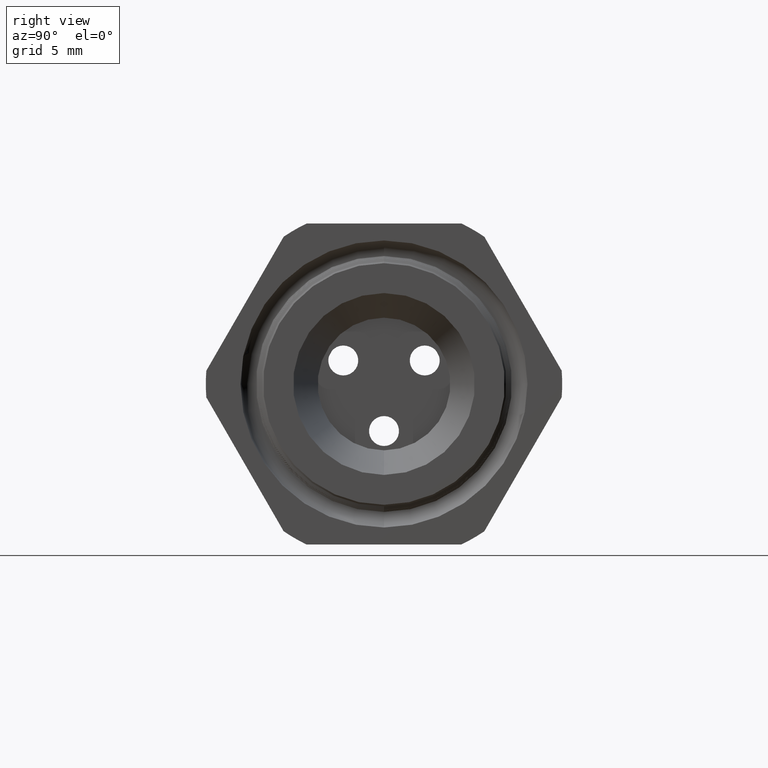
[diagram: clean part render]
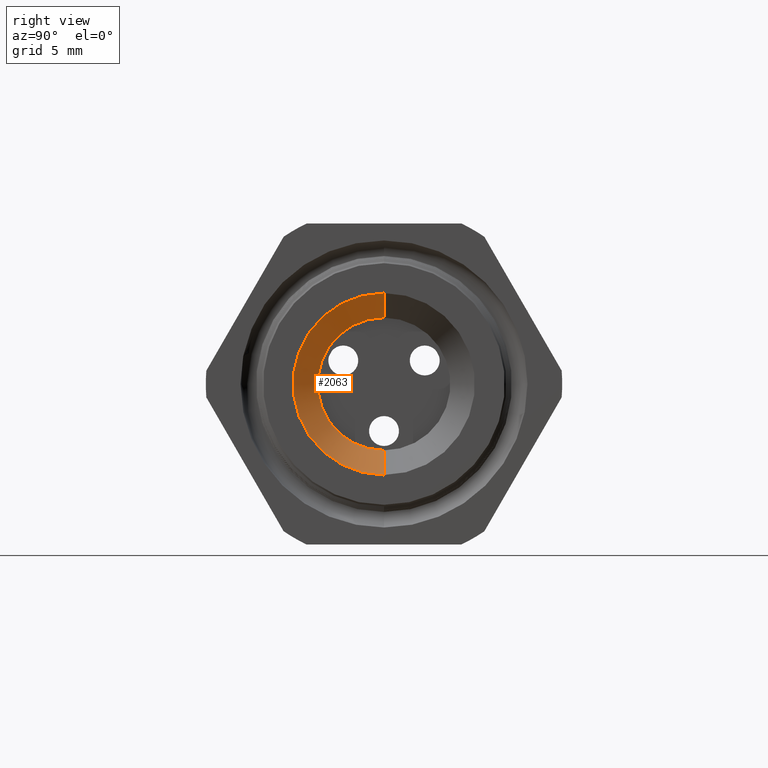
[diagram: same view with one face highlighted and labeled with its STEP entity id]
A machine part, right view. The second image highlights one B-rep face of the part: STEP entity #2063.
In plain terms, the highlighted conical surface has half-angle 3.818 deg.
Its self-contained STEP definition (entity closure, byte-faithful):
#2014 = EDGE_CURVE ( 'NONE', #2057, #2047, #4648, .T. ) ;
#2015 = ORIENTED_EDGE ( 'NONE', *, *, #2014, .F. ) ;
#2019 = ORIENTED_EDGE ( 'NONE', *, *, #2031, .T. ) ;
#2023 = EDGE_CURVE ( 'NONE', #2059, #2041, #4638, .T. ) ;
#2031 = EDGE_CURVE ( 'NONE', #2041, #2047, #4681, .T. ) ;
#2041 = VERTEX_POINT ( 'NONE', #4715 ) ;
#2047 = VERTEX_POINT ( 'NONE', #4699 ) ;
#2055 = EDGE_LOOP ( 'NONE', ( #2056, #2058, #2019, #2015 ) ) ;
#2056 = ORIENTED_EDGE ( 'NONE', *, *, #2060, .F. ) ;
#2057 = VERTEX_POINT ( 'NONE', #4691 ) ;
#2058 = ORIENTED_EDGE ( 'NONE', *, *, #2023, .T. ) ;
#2059 = VERTEX_POINT ( 'NONE', #4690 ) ;
#2060 = EDGE_CURVE ( 'NONE', #2059, #2057, #4751, .T. ) ;
#2063 = ADVANCED_FACE ( 'NONE', ( #4746 ), #4745, .F. ) ;
#4635 = DIRECTION ( 'NONE',  ( 0.9977800507276000100, 8.155605555852239100E-018, 0.06659557320143644200 ) ) ;
#4636 = VECTOR ( 'NONE', #4635, 39.37007874015748100 ) ;
#4637 = CARTESIAN_POINT ( 'NONE',  ( -0.8608661417322833700, 1.898202538678397300E-017, 0.1550000000000000000 ) ) ;
#4638 = LINE ( 'NONE', #4637, #4636 ) ;
#4645 = DIRECTION ( 'NONE',  ( 0.9977800507276000100, 0.0000000000000000000, -0.06659557320143644200 ) ) ;
#4646 = VECTOR ( 'NONE', #4645, 39.37007874015748100 ) ;
#4647 = CARTESIAN_POINT ( 'NONE',  ( -0.8608661417322833700, 0.0000000000000000000, -0.1550000000000000000 ) ) ;
#4648 = LINE ( 'NONE', #4647, #4646 ) ;
#4677 = DIRECTION ( 'NONE',  ( 0.0000000000000000000, 0.0000000000000000000, -1.000000000000000000 ) ) ;
#4678 = DIRECTION ( 'NONE',  ( 1.000000000000000000, 0.0000000000000000000, 0.0000000000000000000 ) ) ;
#4679 = CARTESIAN_POINT ( 'NONE',  ( -2.817073348374284200E-018, 0.0000000000000000000, 0.0000000000000000000 ) ) ;
#4680 = AXIS2_PLACEMENT_3D ( 'NONE', #4679, #4678, #4677 ) ;
#4681 = CIRCLE ( 'NONE', #4680, 0.2124574267310359600 ) ;
#4690 = CARTESIAN_POINT ( 'NONE',  ( -0.8608661417322833700, 1.898202538678397300E-017, 0.1550000000000000000 ) ) ;
#4691 = CARTESIAN_POINT ( 'NONE',  ( -0.8608661417322833700, 0.0000000000000000000, -0.1550000000000000000 ) ) ;
#4699 = CARTESIAN_POINT ( 'NONE',  ( -2.817073348374284200E-018, 0.0000000000000000000, -0.2124574267310359600 ) ) ;
#4715 = CARTESIAN_POINT ( 'NONE',  ( -2.817073348374284200E-018, 2.601853076012465100E-017, 0.2124574267310359600 ) ) ;
#4740 = DIRECTION ( 'NONE',  ( 0.0000000000000000000, 0.0000000000000000000, -1.000000000000000000 ) ) ;
#4741 = DIRECTION ( 'NONE',  ( 1.000000000000000000, 0.0000000000000000000, 0.0000000000000000000 ) ) ;
#4742 = CARTESIAN_POINT ( 'NONE',  ( -0.8608661417322833700, 0.0000000000000000000, 0.0000000000000000000 ) ) ;
#4743 = AXIS2_PLACEMENT_3D ( 'NONE', #4742, #4741, #4740 ) ;
#4745 = CONICAL_SURFACE ( 'NONE', #4743, 0.1550000000000000000, 0.06664489660048481000 ) ;
#4746 = FACE_OUTER_BOUND ( 'NONE', #2055, .T. ) ;
#4747 = DIRECTION ( 'NONE',  ( 0.0000000000000000000, 0.0000000000000000000, -1.000000000000000000 ) ) ;
#4748 = DIRECTION ( 'NONE',  ( 1.000000000000000000, 0.0000000000000000000, 0.0000000000000000000 ) ) ;
#4749 = CARTESIAN_POINT ( 'NONE',  ( -0.8608661417322833700, 0.0000000000000000000, 0.0000000000000000000 ) ) ;
#4750 = AXIS2_PLACEMENT_3D ( 'NONE', #4749, #4748, #4747 ) ;
#4751 = CIRCLE ( 'NONE', #4750, 0.1550000000000000000 ) ;